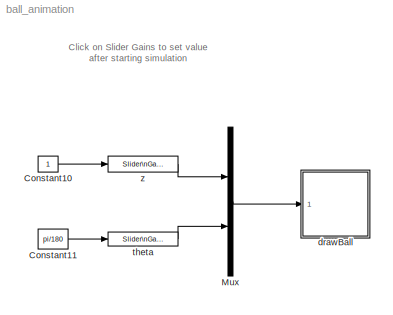
MODEL ball_animation
KIND model
BLOCK [Constant] Constant10
  SID = 1
BLOCK [Constant] Constant11
  SID = 2
  Value = pi/180
BLOCK [Mux] Mux
  DisplayOption = bar
  Inputs = 2
  Ports = [2, 1]
  SID = 3
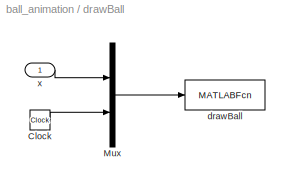
BLOCK [SubSystem] drawBall
  Ports = [1]
  RequestExecContextInheritance = off
  SID = 4
BLOCK [Clock] drawBall/Clock
  SID = 6
BLOCK [Mux] drawBall/Mux
  DisplayOption = bar
  Inputs = 2
  Ports = [2, 1]
  SID = 7
BLOCK [MATLABFcn] drawBall/drawBall
  MATLABFcn = drawBall(u)
  OutputDimensions = 0
  Ports = [1]
  SID = 8
  SampleTime = 0.1
BLOCK [Inport] drawBall/x
  IconDisplay = Port number
  SID = 5
BLOCK [Reference] theta  REF=simulink/Math\nOperations/Slider\nGain
  Ports = [1, 1]
  SID = 9
  SourceBlock = simulink/Math\nOperations/Slider\nGain
  SourceType = Slider Gain
  gain = 43.8304
  high = 180
  low = -180
BLOCK [Reference] z  REF=simulink/Math\nOperations/Slider\nGain
  Ports = [1, 1]
  SID = 10
  SourceBlock = simulink/Math\nOperations/Slider\nGain
  SourceType = Slider Gain
  gain = 0.39677
  high = 3
  low = -3
ANNOTATION (root): Click on Slider Gains to set value \nafter starting simulation
LINE Constant10:1 -> z:1
LINE Constant11:1 -> theta:1
LINE Mux:1 -> drawBall:1
LINE drawBall/Clock:1 -> drawBall/Mux:2
LINE drawBall/Mux:1 -> drawBall/drawBall:1
LINE drawBall/x:1 -> drawBall/Mux:1
LINE theta:1 -> Mux:2
LINE z:1 -> Mux:1
